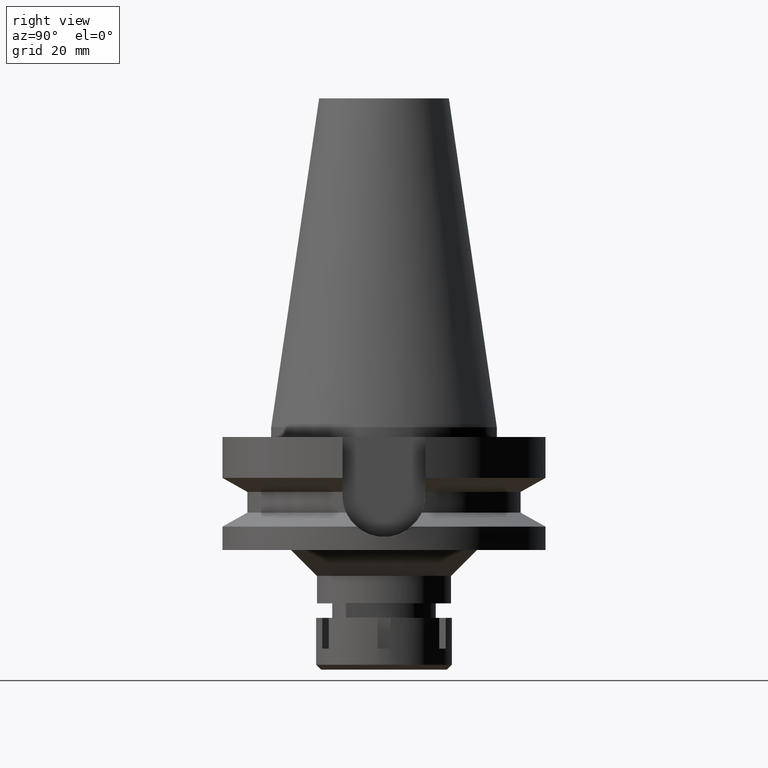
[diagram: clean part render]
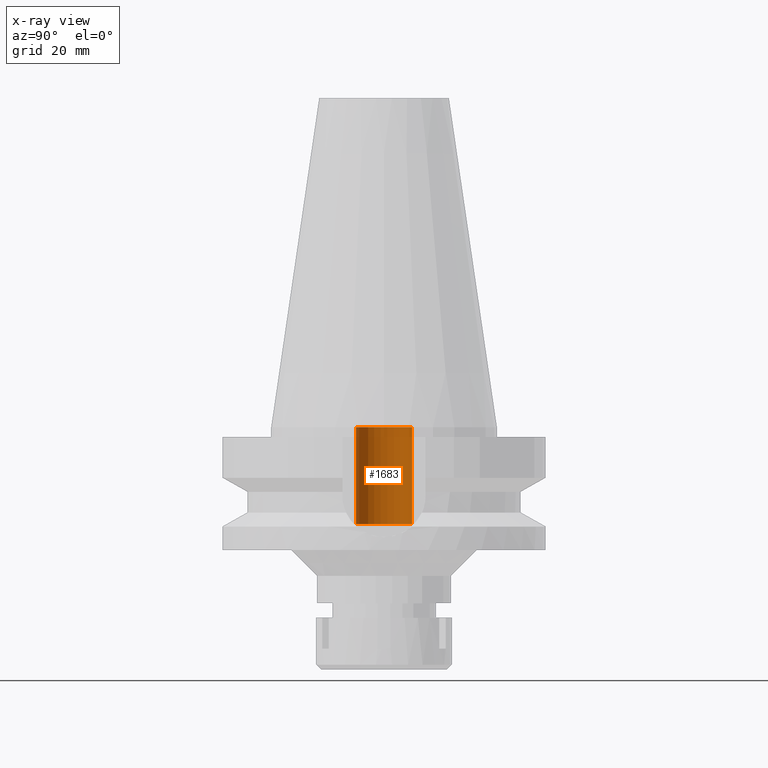
[diagram: x-ray — body ghosted, one internal face saturated and labeled with its STEP entity id]
A machine part, right view, then the same camera in x-ray: the body is ghosted and one INTERNAL B-rep face — a face not visible from any outside direction — is saturated and labeled: STEP entity #1683.
In plain terms, the highlighted cylindrical surface (edge-blend (fillet) strip) has radius 8.65 mm, axis along (0, 0, -1).
Its self-contained STEP definition (entity closure, byte-faithful):
#297 = DIRECTION ( 'NONE',  ( 0.0000000000000000000, 0.0000000000000000000, 1.000000000000000000 ) ) ;
#439 = CARTESIAN_POINT ( 'NONE',  ( 0.0000000000000000000, 2.574697430526999748E-14, 1.989519660127999812E-13 ) ) ;
#702 = DIRECTION ( 'NONE',  ( 0.0000000000000000000, 0.0000000000000000000, -1.000000000000000000 ) ) ;
#791 = CIRCLE ( 'NONE', #2826, 8.650000000000000355 ) ;
#847 = ORIENTED_EDGE ( 'NONE', *, *, #1181, .F. ) ;
#853 = VECTOR ( 'NONE', #297, 1000.000000000000000 ) ;
#938 = CARTESIAN_POINT ( 'NONE',  ( 0.0000000000000000000, -8.650000000000000355, 1.989519660127999812E-13 ) ) ;
#985 = CARTESIAN_POINT ( 'NONE',  ( 0.0000000000000000000, 2.574697430526999748E-14, 110.2400000000000091 ) ) ;
#1024 = CIRCLE ( 'NONE', #2024, 8.650000000000000355 ) ;
#1126 = CARTESIAN_POINT ( 'NONE',  ( 0.0000000000000000000, -8.650000000000000355, -30.00000000000000000 ) ) ;
#1181 = EDGE_CURVE ( 'NONE', #2050, #1416, #1024, .T. ) ;
#1244 = LINE ( 'NONE', #1799, #1277 ) ;
#1269 = DIRECTION ( 'NONE',  ( 0.0000000000000000000, -1.000000000000000000, 0.0000000000000000000 ) ) ;
#1270 = CARTESIAN_POINT ( 'NONE',  ( 0.0000000000000000000, -8.650000000000000355, -30.00000000000000000 ) ) ;
#1273 = AXIS2_PLACEMENT_3D ( 'NONE', #985, #702, #1615 ) ;
#1277 = VECTOR ( 'NONE', #2823, 1000.000000000000000 ) ;
#1282 = ORIENTED_EDGE ( 'NONE', *, *, #1625, .T. ) ;
#1321 = CARTESIAN_POINT ( 'NONE',  ( 0.0000000000000000000, 2.574697430526999748E-14, -30.00000000000000000 ) ) ;
#1416 = VERTEX_POINT ( 'NONE', #3020 ) ;
#1615 = DIRECTION ( 'NONE',  ( 0.0000000000000000000, -1.000000000000000000, 0.0000000000000000000 ) ) ;
#1625 = EDGE_CURVE ( 'NONE', #2834, #3271, #791, .T. ) ;
#1683 = ADVANCED_FACE ( 'NONE', ( #2380 ), #3529, .F. ) ;
#1721 = ORIENTED_EDGE ( 'NONE', *, *, #2333, .T. ) ;
#1724 = CARTESIAN_POINT ( 'NONE',  ( 0.0000000000000000000, 8.650000000000000355, -30.00000000000000000 ) ) ;
#1799 = CARTESIAN_POINT ( 'NONE',  ( 0.0000000000000000000, 8.650000000000000355, -30.00000000000000000 ) ) ;
#1935 = LINE ( 'NONE', #1126, #853 ) ;
#2024 = AXIS2_PLACEMENT_3D ( 'NONE', #439, #3245, #2114 ) ;
#2050 = VERTEX_POINT ( 'NONE', #938 ) ;
#2114 = DIRECTION ( 'NONE',  ( 0.0000000000000000000, -1.000000000000000000, 0.0000000000000000000 ) ) ;
#2203 = EDGE_CURVE ( 'NONE', #2834, #2050, #1935, .T. ) ;
#2333 = EDGE_CURVE ( 'NONE', #3271, #1416, #1244, .T. ) ;
#2380 = FACE_OUTER_BOUND ( 'NONE', #2898, .T. ) ;
#2823 = DIRECTION ( 'NONE',  ( 0.0000000000000000000, 0.0000000000000000000, 1.000000000000000000 ) ) ;
#2826 = AXIS2_PLACEMENT_3D ( 'NONE', #1321, #3219, #1269 ) ;
#2834 = VERTEX_POINT ( 'NONE', #1270 ) ;
#2898 = EDGE_LOOP ( 'NONE', ( #847, #3481, #1282, #1721 ) ) ;
#3020 = CARTESIAN_POINT ( 'NONE',  ( 0.0000000000000000000, 8.650000000000000355, 1.989519660127999812E-13 ) ) ;
#3219 = DIRECTION ( 'NONE',  ( 0.0000000000000000000, 0.0000000000000000000, -1.000000000000000000 ) ) ;
#3245 = DIRECTION ( 'NONE',  ( 0.0000000000000000000, 0.0000000000000000000, -1.000000000000000000 ) ) ;
#3271 = VERTEX_POINT ( 'NONE', #1724 ) ;
#3481 = ORIENTED_EDGE ( 'NONE', *, *, #2203, .F. ) ;
#3529 = CYLINDRICAL_SURFACE ( 'NONE', #1273, 8.650000000000000355 ) ;